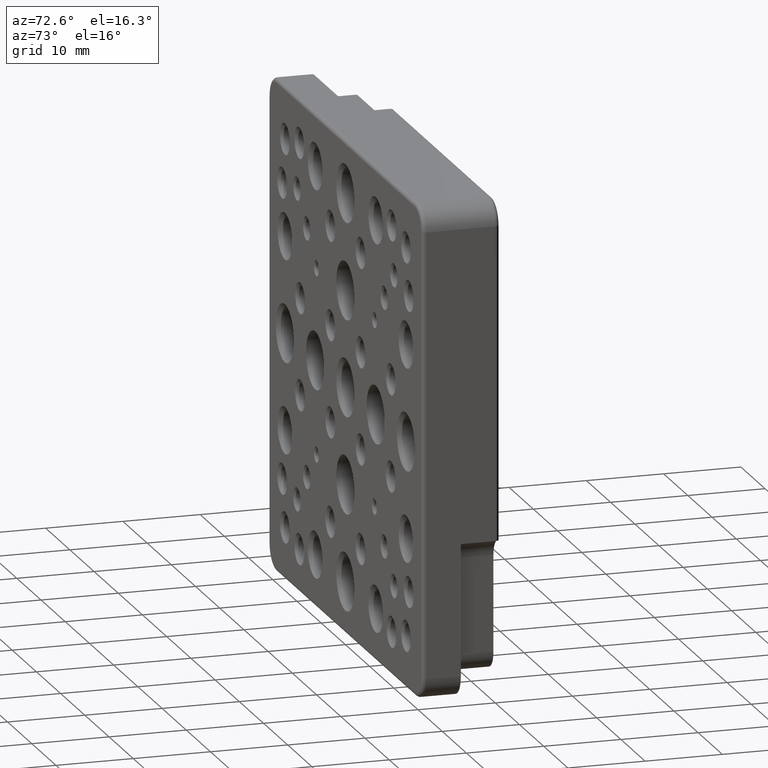
[diagram: clean part render]
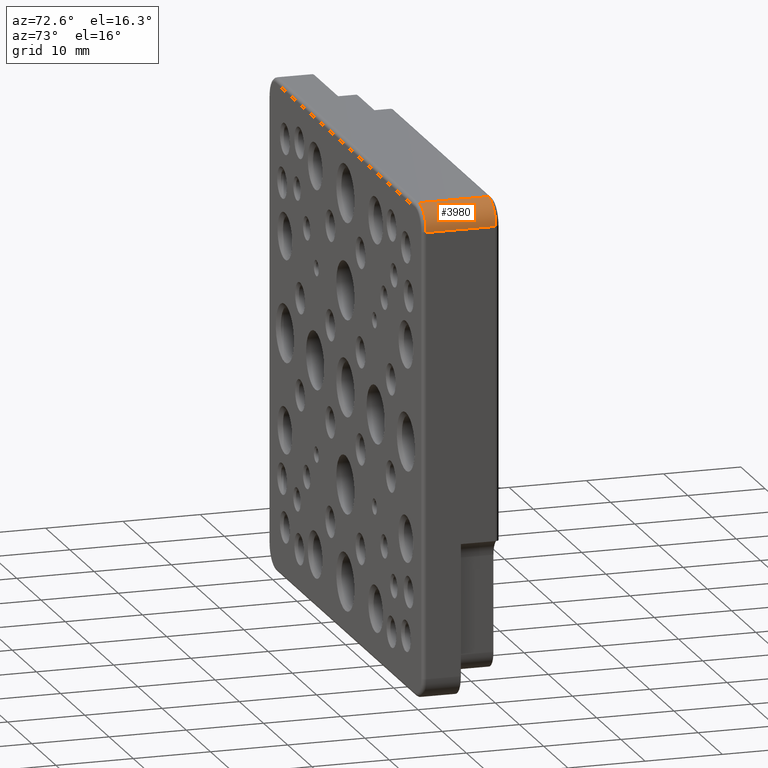
[diagram: same view with one face highlighted and labeled with its STEP entity id]
A machine part, auxiliary view. The second image highlights one B-rep face of the part: STEP entity #3980.
In plain terms, the highlighted cylindrical surface (edge-blend (fillet) strip) has radius 3 mm, axis along (0, -1, 0).
Its self-contained STEP definition (entity closure, byte-faithful):
#82 = EDGE_CURVE ( 'NONE', #3408, #1176, #4334, .T. ) ;
#169 = ORIENTED_EDGE ( 'NONE', *, *, #1608, .F. ) ;
#232 = DIRECTION ( 'NONE',  ( 2.312964634635740689E-15, 0.000000000000000000, 1.000000000000000000 ) ) ;
#236 = AXIS2_PLACEMENT_3D ( 'NONE', #2823, #2508, #1811 ) ;
#263 = CARTESIAN_POINT ( 'NONE',  ( 28.75000000000001066, 9.500000000000000000, 31.75000000000000000 ) ) ;
#310 = DIRECTION ( 'NONE',  ( -0.000000000000000000, 1.000000000000000000, -0.000000000000000000 ) ) ;
#476 = ORIENTED_EDGE ( 'NONE', *, *, #599, .F. ) ;
#582 = ORIENTED_EDGE ( 'NONE', *, *, #82, .T. ) ;
#599 = EDGE_CURVE ( 'NONE', #1919, #1176, #3670, .T. ) ;
#620 = CARTESIAN_POINT ( 'NONE',  ( 28.75000000000001066, 10.00000000000000000, 31.75000000000000000 ) ) ;
#671 = CARTESIAN_POINT ( 'NONE',  ( 28.75000000000001066, 0.5000000000000004441, 31.75000000000000000 ) ) ;
#710 = EDGE_LOOP ( 'NONE', ( #476, #1029, #169, #582 ) ) ;
#794 = DIRECTION ( 'NONE',  ( 0.000000000000000000, 1.000000000000000000, 0.000000000000000000 ) ) ;
#1029 = ORIENTED_EDGE ( 'NONE', *, *, #2857, .T. ) ;
#1062 = CARTESIAN_POINT ( 'NONE',  ( 31.75000000000001421, 9.500000000000000000, 28.75000000000000355 ) ) ;
#1086 = CIRCLE ( 'NONE', #4293, 3.000000000000002665 ) ;
#1106 = LINE ( 'NONE', #2079, #2164 ) ;
#1176 = VERTEX_POINT ( 'NONE', #263 ) ;
#1271 = AXIS2_PLACEMENT_3D ( 'NONE', #2528, #1589, #232 ) ;
#1520 = FACE_OUTER_BOUND ( 'NONE', #710, .T. ) ;
#1564 = VERTEX_POINT ( 'NONE', #4111 ) ;
#1589 = DIRECTION ( 'NONE',  ( -0.000000000000000000, -1.000000000000000000, -0.000000000000000000 ) ) ;
#1608 = EDGE_CURVE ( 'NONE', #3408, #1564, #1106, .T. ) ;
#1811 = DIRECTION ( 'NONE',  ( 0.000000000000000000, 0.000000000000000000, -1.000000000000000000 ) ) ;
#1919 = VERTEX_POINT ( 'NONE', #671 ) ;
#2079 = CARTESIAN_POINT ( 'NONE',  ( 31.75000000000001421, 10.00000000000000000, 28.75000000000000355 ) ) ;
#2164 = VECTOR ( 'NONE', #4160, 1000.000000000000000 ) ;
#2508 = DIRECTION ( 'NONE',  ( 0.000000000000000000, -1.000000000000000000, 0.000000000000000000 ) ) ;
#2528 = CARTESIAN_POINT ( 'NONE',  ( 28.75000000000001421, 9.500000000000000000, 28.75000000000000355 ) ) ;
#2548 = CARTESIAN_POINT ( 'NONE',  ( 28.75000000000001421, 0.5000000000000004441, 28.75000000000000355 ) ) ;
#2823 = CARTESIAN_POINT ( 'NONE',  ( 28.75000000000001421, 10.00000000000000000, 28.75000000000000355 ) ) ;
#2857 = EDGE_CURVE ( 'NONE', #1919, #1564, #1086, .T. ) ;
#2887 = CYLINDRICAL_SURFACE ( 'NONE', #236, 2.999999999999999112 ) ;
#3145 = DIRECTION ( 'NONE',  ( 0.000000000000000000, 0.000000000000000000, 1.000000000000000000 ) ) ;
#3408 = VERTEX_POINT ( 'NONE', #1062 ) ;
#3670 = LINE ( 'NONE', #620, #4352 ) ;
#3980 = ADVANCED_FACE ( 'NONE', ( #1520 ), #2887, .T. ) ;
#4111 = CARTESIAN_POINT ( 'NONE',  ( 31.75000000000001421, 0.5000000000000004441, 28.75000000000000355 ) ) ;
#4160 = DIRECTION ( 'NONE',  ( 0.000000000000000000, -1.000000000000000000, 0.000000000000000000 ) ) ;
#4293 = AXIS2_PLACEMENT_3D ( 'NONE', #2548, #794, #3145 ) ;
#4334 = CIRCLE ( 'NONE', #1271, 3.000000000000002665 ) ;
#4352 = VECTOR ( 'NONE', #310, 1000.000000000000000 ) ;